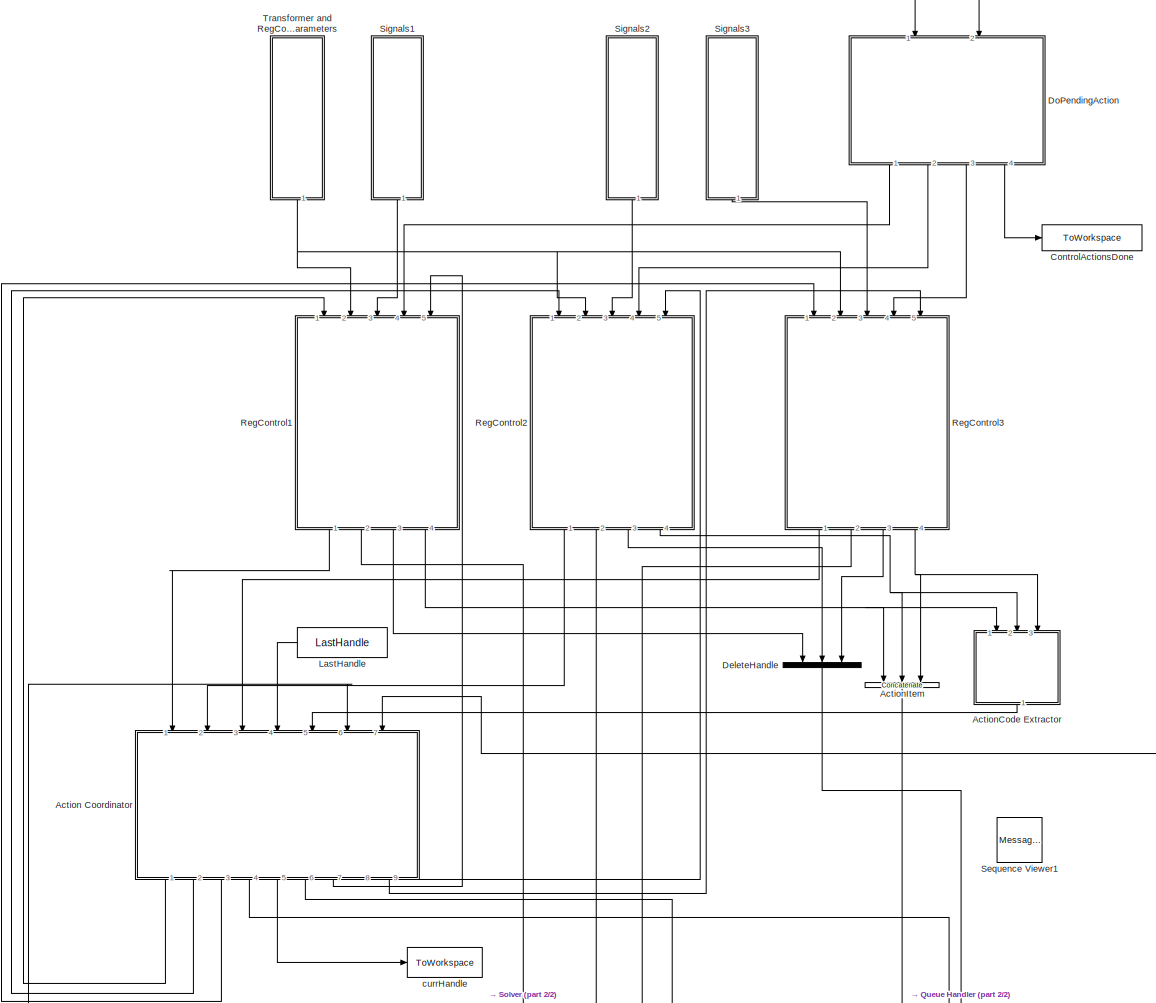
[diagram: root canvas - part 1/2, full width, middle band]
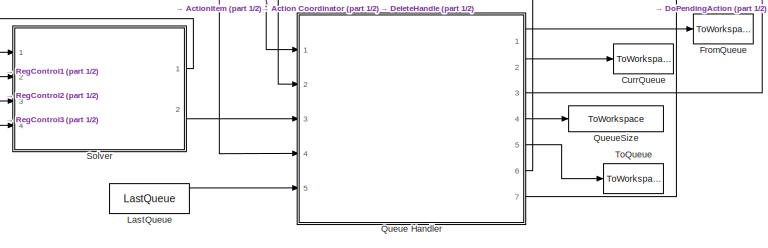
[diagram: root canvas - part 2/2, bottom right region]
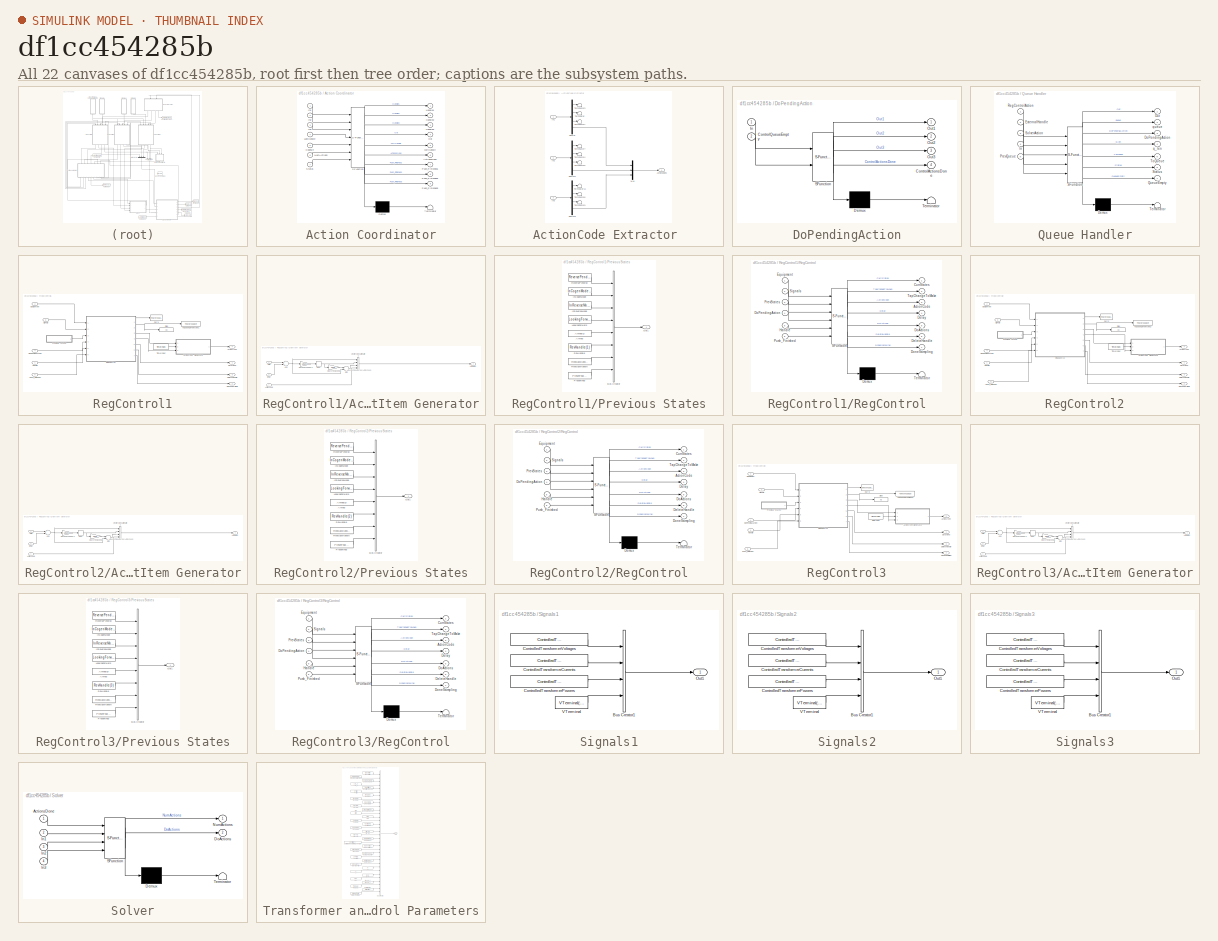
[diagram: thumbnail index - all 22 canvases of the model, root first then tree order]
MODEL slx_df1cc454285b
KIND model
CONFIG AbsTol = auto
CONFIG EnableMultiTasking = off
CONFIG FixedStep = auto
CONFIG MaxStep = auto
CONFIG MinStep = auto
CONFIG RelTol = 1e-3
CONFIG SampleTimeConstraint = Unconstrained
CONFIG Solver = VariableStepAuto
CONFIG SolverName = VariableStepAuto
CONFIG StartTime = 0.0
CONFIG StopTime = 10.0
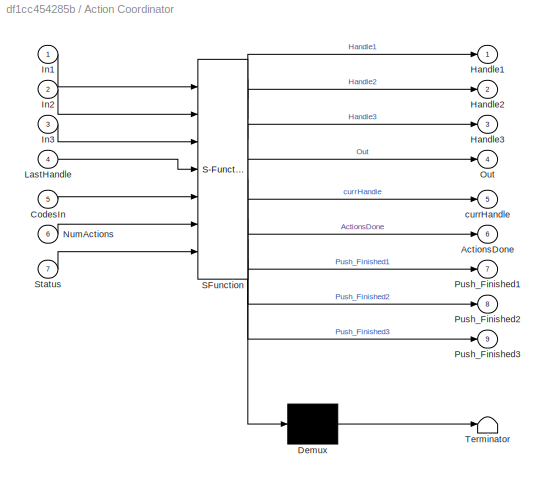
BLOCK [SubSystem] Action Coordinator
  ErrorFcn = Stateflow.Translate.translate
  PermitHierarchicalResolution = ExplicitOnly
  Ports = [7, 9]
  RequestExecContextInheritance = off
  SFBlockType = Chart
  ShowPortLabels = SignalName
  TreatAsAtomicUnit = on
BLOCK [Demux] Action Coordinator/ Demux 
  Outputs = 1
  Ports = [1, 1]
BLOCK [S-Function] Action Coordinator/ SFunction 
  EnableBusSupport = on
  FunctionName = sf_sfun
  InputPortMessageModes = m,m,m,n,n,m,m
  OutputPortMessageModes = n,m,m,m,m,n,m,m,m,m
  Parameters = false,true,uint8(0)
  PortCounts = [7 10]
  Ports = [7, 10]
  SFcnIsStateOwnerBlock = off
  SFunctionDeploymentMode = off
  Tag = Stateflow S-Function regcontrol_model_3ph 7
BLOCK [Terminator] Action Coordinator/ Terminator 
BLOCK [Outport] Action Coordinator/ActionsDone
  IconDisplay = Port number
  Port = 6
BLOCK [Inport] Action Coordinator/CodesIn
  IconDisplay = Port number
  Port = 5
BLOCK [Outport] Action Coordinator/Handle1
  IconDisplay = Port number
BLOCK [Outport] Action Coordinator/Handle2
  IconDisplay = Port number
  Port = 2
BLOCK [Outport] Action Coordinator/Handle3
  IconDisplay = Port number
  Port = 3
BLOCK [Inport] Action Coordinator/In1
  IconDisplay = Port number
BLOCK [Inport] Action Coordinator/In2
  IconDisplay = Port number
  Port = 2
BLOCK [Inport] Action Coordinator/In3
  IconDisplay = Port number
  Port = 3
BLOCK [Inport] Action Coordinator/LastHandle
  IconDisplay = Port number
  Port = 4
BLOCK [Inport] Action Coordinator/NumActions
  IconDisplay = Port number
  Port = 6
BLOCK [Outport] Action Coordinator/Out
  IconDisplay = Port number
  Port = 4
BLOCK [Outport] Action Coordinator/Push_Finished1
  IconDisplay = Port number
  Port = 7
BLOCK [Outport] Action Coordinator/Push_Finished2
  IconDisplay = Port number
  Port = 8
BLOCK [Outport] Action Coordinator/Push_Finished3
  IconDisplay = Port number
  Port = 9
BLOCK [Inport] Action Coordinator/Status
  IconDisplay = Port number
  Port = 7
BLOCK [Outport] Action Coordinator/currHandle
  IconDisplay = Port number
  Port = 5
BLOCK [SubSystem] ActionCode Extractor 
  Ports = [3, 1]
  RequestExecContextInheritance = off
BLOCK [Outport] ActionCode Extractor /ActionCodes
  IconDisplay = Port number
BLOCK [Demux] ActionCode Extractor /Demux
  DisplayOption = bar
  Ports = [1, 4]
BLOCK [Demux] ActionCode Extractor /Demux1
  DisplayOption = bar
  Ports = [1, 4]
BLOCK [Demux] ActionCode Extractor /Demux2
  DisplayOption = bar
  Ports = [1, 4]
BLOCK [Inport] ActionCode Extractor /In1
  IconDisplay = Port number
BLOCK [Inport] ActionCode Extractor /In2
  IconDisplay = Port number
  Port = 2
BLOCK [Inport] ActionCode Extractor /In3
  IconDisplay = Port number
  Port = 3
BLOCK [Mux] ActionCode Extractor /Mux
  DisplayOption = bar
  Inputs = 3
  Ports = [3, 1]
BLOCK [Terminator] ActionCode Extractor /Terminator
BLOCK [Terminator] ActionCode Extractor /Terminator1
BLOCK [Terminator] ActionCode Extractor /Terminator11
BLOCK [Terminator] ActionCode Extractor /Terminator3
BLOCK [Terminator] ActionCode Extractor /Terminator4
BLOCK [Terminator] ActionCode Extractor /Terminator5
BLOCK [Terminator] ActionCode Extractor /Terminator7
BLOCK [Terminator] ActionCode Extractor /Terminator8
BLOCK [Terminator] ActionCode Extractor /Terminator9
BLOCK [Concatenate] ActionItem
  ConcatenateDimension = 2
  Mode = Multidimensional array
  NumInputs = 3
  Ports = [3, 1]
BLOCK [ToWorkspace] ControlActionsDone
  FixptAsFi = on
  MaxDataPoints = 1
  Ports = [1]
  SampleTime = -1
  Save2DSignal = 3-D array (concatenate along third dimension)
  SaveFormat = Timeseries
  VariableName = ControlActionsDone
BLOCK [ToWorkspace] CurrQueue
  FixptAsFi = on
  MaxDataPoints = inf
  Ports = [1]
  SampleTime = 1
  Save2DSignal = 3-D array (concatenate along third dimension)
  SaveFormat = Structure With Time
  VariableName = CurrQueue
BLOCK [Mux] DeleteHandle
  DisplayOption = bar
  Inputs = 3
  Ports = [3, 1]
BLOCK [SubSystem] DoPendingAction
  ErrorFcn = Stateflow.Translate.translate
  PermitHierarchicalResolution = ExplicitOnly
  Ports = [2, 4]
  RequestExecContextInheritance = off
  SFBlockType = Chart
  ShowPortLabels = SignalName
  TreatAsAtomicUnit = on
BLOCK [Demux] DoPendingAction/ Demux 
  Outputs = 1
  Ports = [1, 1]
BLOCK [S-Function] DoPendingAction/ SFunction 
  EnableBusSupport = on
  FunctionName = sf_sfun
  InputPortMessageModes = m,m
  OutputPortMessageModes = n,m,m,m,n
  Parameters = 0,false
  PortCounts = [2 5]
  Ports = [2, 5]
  SFcnIsStateOwnerBlock = off
  SFunctionDeploymentMode = off
  Tag = Stateflow S-Function regcontrol_model_3ph 9
BLOCK [Terminator] DoPendingAction/ Terminator 
BLOCK [Outport] DoPendingAction/ControlActionsDone
  IconDisplay = Port number
  Port = 4
BLOCK [Inport] DoPendingAction/ControlQueueEmpty
  IconDisplay = Port number
  Port = 2
BLOCK [Inport] DoPendingAction/In
  IconDisplay = Port number
BLOCK [Outport] DoPendingAction/Out1
  IconDisplay = Port number
BLOCK [Outport] DoPendingAction/Out2
  IconDisplay = Port number
  Port = 2
BLOCK [Outport] DoPendingAction/Out3
  IconDisplay = Port number
  Port = 3
BLOCK [ToWorkspace] FromQueue
  FixptAsFi = on
  MaxDataPoints = inf
  Ports = [1]
  SampleTime = 1
  Save2DSignal = 3-D array (concatenate along third dimension)
  SaveFormat = Structure With Time
  VariableName = FromQueue
BLOCK [Constant] LastHandle
  Value = LastHandle
BLOCK [Constant] LastQueue
  OutDataTypeStr = double
  Value = LastQueue
  VectorParams1D = off
BLOCK [SubSystem] Queue Handler
  ErrorFcn = Stateflow.Translate.translate
  PermitHierarchicalResolution = ExplicitOnly
  Ports = [5, 7]
  RequestExecContextInheritance = off
  SFBlockType = Chart
  TreatAsAtomicUnit = on
BLOCK [Demux] Queue Handler/ Demux 
  Outputs = 1
  Ports = [1, 1]
BLOCK [S-Function] Queue Handler/ SFunction 
  EnableBusSupport = on
  FunctionName = sf_sfun
  InputPortMessageModes = m,n,m,n,n
  OutputPortMessageModes = n,n,n,m,n,n,m,m
  Parameters = 0,1,2,5,double([0 0]'),false,false;,true
  PortCounts = [5 8]
  Ports = [5, 8]
  SFcnIsStateOwnerBlock = off
  SFunctionDeploymentMode = off
  Tag = Stateflow S-Function regcontrol_model_3ph 5
BLOCK [Terminator] Queue Handler/ Terminator 
BLOCK [Outport] Queue Handler/DoPendingAction
  IconDisplay = Port number
  Port = 3
BLOCK [Inport] Queue Handler/ExternalHandle
  IconDisplay = Port number
  Port = 2
BLOCK [Inport] Queue Handler/In
  IconDisplay = Port number
  Port = 4
BLOCK [Outport] Queue Handler/Out
  IconDisplay = Port number
BLOCK [Inport] Queue Handler/PrevQueue
  IconDisplay = Port number
  Port = 5
BLOCK [Outport] Queue Handler/QueueEmpty
  IconDisplay = Port number
  Port = 7
BLOCK [Inport] Queue Handler/RegControlAction
  IconDisplay = Port number
BLOCK [Inport] Queue Handler/SolverAction
  IconDisplay = Port number
  Port = 3
BLOCK [Outport] Queue Handler/Status
  IconDisplay = Port number
  Port = 6
BLOCK [Outport] Queue Handler/ToQueue
  IconDisplay = Port number
  Port = 5
BLOCK [Outport] Queue Handler/q_len
  IconDisplay = Port number
  Port = 4
BLOCK [Outport] Queue Handler/queue
  IconDisplay = Port number
  Port = 2
BLOCK [ToWorkspace] QueueSize
  FixptAsFi = on
  MaxDataPoints = 1
  Ports = [1]
  SampleTime = -1
  Save2DSignal = 3-D array (concatenate along third dimension)
  SaveFormat = Timeseries
  VariableName = QueueSize
BLOCK [SubSystem] RegControl1
  Ports = [5, 4]
  RequestExecContextInheritance = off
BLOCK [Outport] RegControl1/ActionItem
  IconDisplay = Port number
  Port = 4
BLOCK [SubSystem] RegControl1/ActionItem Generator
  Ports = [3, 1]
  RequestExecContextInheritance = off
BLOCK [Inport] RegControl1/ActionItem Generator/ActionCode
  IconDisplay = Port number
BLOCK [Outport] RegControl1/ActionItem Generator/ActionItem
  IconDisplay = Port number
BLOCK [Sum] RegControl1/ActionItem Generator/Add
  InputSameDT = off
  OutDataTypeStr = Inherit: Inherit via internal rule
  Ports = [2, 1]
  SaturateOnIntegerOverflow = off
BLOCK [Inport] RegControl1/ActionItem Generator/Delay
  IconDisplay = Port number
  Port = 3
BLOCK [Rounding] RegControl1/ActionItem Generator/Hour
BLOCK [Gain] RegControl1/ActionItem Generator/HoursToSeconds
  Gain = 3600
  OutDataTypeStr = Inherit: Inherit via internal rule
  ParamDataTypeStr = Inherit: Inherit via internal rule
  SaturateOnIntegerOverflow = off
BLOCK [Sum] RegControl1/ActionItem Generator/Sec
  InputSameDT = off
  Inputs = -+
  OutDataTypeStr = Inherit: Inherit via internal rule
  Ports = [2, 1]
  SaturateOnIntegerOverflow = off
BLOCK [Gain] RegControl1/ActionItem Generator/SecondsToHours
  Gain = 1/3600
  OutDataTypeStr = Inherit: Inherit via internal rule
  ParamDataTypeStr = Inherit: Inherit via internal rule
  SaturateOnIntegerOverflow = off
BLOCK [Inport] RegControl1/ActionItem Generator/Time
  IconDisplay = Port number
  Port = 2
BLOCK [Concatenate] RegControl1/ActionItem Generator/Vector Concatenate1
  NumInputs = 4
  Ports = [4, 1]
BLOCK [ToWorkspace] RegControl1/Curr1
  FixptAsFi = on
  MaxDataPoints = 1
  Ports = [1]
  SampleTime = -1
  Save2DSignal = 3-D array (concatenate along third dimension)
  SaveFormat = Timeseries
  VariableName = Curr1
BLOCK [Outport] RegControl1/DeleteHandle
  IconDisplay = Port number
  Port = 3
BLOCK [Display] RegControl1/Disp
  Decimation = 1
  Ports = [1]
BLOCK [Outport] RegControl1/DoActions
  IconDisplay = Port number
BLOCK [Inport] RegControl1/DoPendingAction
  IconDisplay = Port number
  Port = 4
BLOCK [Outport] RegControl1/DoneSampling
  IconDisplay = Port number
  Port = 2
BLOCK [Inport] RegControl1/Equipment
  IconDisplay = Port number
  Port = 2
BLOCK [Inport] RegControl1/Handle
  IconDisplay = Port number
BLOCK [SubSystem] RegControl1/Previous States
  Ports = [0, 1]
  RequestExecContextInheritance = off
BLOCK [Constant] RegControl1/Previous States/Armed
  Value = Armed(1)
BLOCK [BusCreator] RegControl1/Previous States/Bus Creator
  DisplayOption = bar
  InheritFromInputs = off
  Inputs = 8
  OutDataTypeStr = Bus: StatesBus
  Ports = [8, 1]
BLOCK [Constant] RegControl1/Previous States/InCogenMode
  Value = InCogenMode(1)
BLOCK [Constant] RegControl1/Previous States/InReverseMode
  Value = InReverseMode(1)
BLOCK [Constant] RegControl1/Previous States/LookingForward
  Value = LookingForward(1)
BLOCK [Outport] RegControl1/Previous States/Out1
  IconDisplay = Port number
BLOCK [Constant] RegControl1/Previous States/PresentTap
  Value = PresentTap(1)
BLOCK [Constant] RegControl1/Previous States/RevBackHandle
  Value = RevBackHandle(1)
BLOCK [Constant] RegControl1/Previous States/RevHandle
  Value = RevHandle(1)
BLOCK [Constant] RegControl1/Previous States/ReversePending
  Value = ReversePending(1)
BLOCK [Inport] RegControl1/Push_Finished
  IconDisplay = Port number
  Port = 5
BLOCK [SubSystem] RegControl1/RegControl
  ErrorFcn = Stateflow.Translate.translate
  PermitHierarchicalResolution = ExplicitOnly
  Ports = [6, 7]
  RequestExecContextInheritance = off
  SFBlockType = Chart
  TreatAsAtomicUnit = on
BLOCK [Demux] RegControl1/RegControl/ Demux 
  Outputs = 1
  Ports = [1, 1]
BLOCK [S-Function] RegControl1/RegControl/ SFunction 
  EnableBusSupport = on
  FunctionName = sf_sfun
  InputPortMessageModes = n,n,n,m,m,m
  OutputPortMessageModes = n,n,n,n,n,m,n,m
  Parameters = 0,1.0e-12,120,3,60,BaseVoltage,complex(0),false,uint8(1),uint8(16)
  PortCounts = [6 8]
  Ports = [6, 8]
  SFcnIsStateOwnerBlock = off
  SFunctionDeploymentMode = off
  Tag = Stateflow S-Function regcontrol_model_3ph 2
BLOCK [Terminator] RegControl1/RegControl/ Terminator 
BLOCK [Outport] RegControl1/RegControl/ActionCode
  IconDisplay = Port number
  Port = 3
BLOCK [Outport] RegControl1/RegControl/CurrStates
  IconDisplay = Port number
BLOCK [Outport] RegControl1/RegControl/Delay
  IconDisplay = Port number
  Port = 4
BLOCK [Outport] RegControl1/RegControl/DeleteHandle
  IconDisplay = Port number
  Port = 6
BLOCK [Outport] RegControl1/RegControl/DoActions
  IconDisplay = Port number
  Port = 5
BLOCK [Inport] RegControl1/RegControl/DoPendingAction
  IconDisplay = Port number
  Port = 4
BLOCK [Outport] RegControl1/RegControl/DoneSampling
  IconDisplay = Port number
  Port = 7
BLOCK [Inport] RegControl1/RegControl/Equipment
  IconDisplay = Port number
BLOCK [Inport] RegControl1/RegControl/Handle
  IconDisplay = Port number
  Port = 5
BLOCK [Inport] RegControl1/RegControl/PrevStates
  IconDisplay = Port number
  Port = 3
BLOCK [Inport] RegControl1/RegControl/Push_Finished
  IconDisplay = Port number
  Port = 6
BLOCK [Inport] RegControl1/RegControl/Signals
  IconDisplay = Port number
  Port = 2
BLOCK [Outport] RegControl1/RegControl/TapChangeToMake
  IconDisplay = Port number
  Port = 2
BLOCK [Inport] RegControl1/Signals
  IconDisplay = Port number
  Port = 3
BLOCK [ToWorkspace] RegControl1/TapChangeToMake1
  FixptAsFi = on
  MaxDataPoints = 1
  Ports = [1]
  SampleTime = -1
  Save2DSignal = 3-D array (concatenate along third dimension)
  SaveFormat = Timeseries
  VariableName = TapChangeToMake1
BLOCK [Constant] RegControl1/TimeInSec
  OutDataTypeStr = double
  Value = TimeInSec
BLOCK [SubSystem] RegControl2
  Ports = [5, 4]
  RequestExecContextInheritance = off
BLOCK [Outport] RegControl2/ActionItem
  IconDisplay = Port number
  Port = 4
BLOCK [SubSystem] RegControl2/ActionItem Generator
  Ports = [3, 1]
  RequestExecContextInheritance = off
BLOCK [Inport] RegControl2/ActionItem Generator/ActionCode
  IconDisplay = Port number
BLOCK [Outport] RegControl2/ActionItem Generator/ActionItem
  IconDisplay = Port number
BLOCK [Sum] RegControl2/ActionItem Generator/Add
  InputSameDT = off
  OutDataTypeStr = Inherit: Inherit via internal rule
  Ports = [2, 1]
  SaturateOnIntegerOverflow = off
BLOCK [Inport] RegControl2/ActionItem Generator/Delay
  IconDisplay = Port number
  Port = 3
BLOCK [Rounding] RegControl2/ActionItem Generator/Hour
BLOCK [Gain] RegControl2/ActionItem Generator/HoursToSeconds
  Gain = 3600
  OutDataTypeStr = Inherit: Inherit via internal rule
  ParamDataTypeStr = Inherit: Inherit via internal rule
  SaturateOnIntegerOverflow = off
BLOCK [Sum] RegControl2/ActionItem Generator/Sec
  InputSameDT = off
  Inputs = -+
  OutDataTypeStr = Inherit: Inherit via internal rule
  Ports = [2, 1]
  SaturateOnIntegerOverflow = off
BLOCK [Gain] RegControl2/ActionItem Generator/SecondsToHours
  Gain = 1/3600
  OutDataTypeStr = Inherit: Inherit via internal rule
  ParamDataTypeStr = Inherit: Inherit via internal rule
  SaturateOnIntegerOverflow = off
BLOCK [Inport] RegControl2/ActionItem Generator/Time
  IconDisplay = Port number
  Port = 2
BLOCK [Concatenate] RegControl2/ActionItem Generator/Vector Concatenate1
  NumInputs = 4
  Ports = [4, 1]
BLOCK [ToWorkspace] RegControl2/Curr2
  FixptAsFi = on
  MaxDataPoints = 1
  Ports = [1]
  SampleTime = -1
  Save2DSignal = 3-D array (concatenate along third dimension)
  SaveFormat = Timeseries
  VariableName = Curr2
BLOCK [Outport] RegControl2/DeleteHandle
  IconDisplay = Port number
  Port = 3
BLOCK [Display] RegControl2/Disp
  Decimation = 1
  Ports = [1]
BLOCK [Outport] RegControl2/DoActions
  IconDisplay = Port number
BLOCK [Inport] RegControl2/DoPendingAction
  IconDisplay = Port number
  Port = 4
BLOCK [Outport] RegControl2/DoneSampling
  IconDisplay = Port number
  Port = 2
BLOCK [Inport] RegControl2/Equipment
  IconDisplay = Port number
  Port = 2
BLOCK [Inport] RegControl2/Handle
  IconDisplay = Port number
BLOCK [SubSystem] RegControl2/Previous States
  Ports = [0, 1]
  RequestExecContextInheritance = off
BLOCK [Constant] RegControl2/Previous States/Armed
  Value = Armed(2)
BLOCK [BusCreator] RegControl2/Previous States/Bus Creator
  DisplayOption = bar
  InheritFromInputs = off
  Inputs = 8
  OutDataTypeStr = Bus: StatesBus
  Ports = [8, 1]
BLOCK [Constant] RegControl2/Previous States/InCogenMode
  Value = InCogenMode(2)
BLOCK [Constant] RegControl2/Previous States/InReverseMode
  Value = InReverseMode(2)
BLOCK [Constant] RegControl2/Previous States/LookingForward
  Value = LookingForward(2)
BLOCK [Outport] RegControl2/Previous States/Out1
  IconDisplay = Port number
BLOCK [Constant] RegControl2/Previous States/PresentTap
  Value = PresentTap(2)
BLOCK [Constant] RegControl2/Previous States/RevBackHandle
  Value = RevBackHandle(2)
BLOCK [Constant] RegControl2/Previous States/RevHandle
  Value = RevHandle(2)
BLOCK [Constant] RegControl2/Previous States/ReversePending
  Value = ReversePending(2)
BLOCK [Inport] RegControl2/Push_Finished
  IconDisplay = Port number
  Port = 5
BLOCK [SubSystem] RegControl2/RegControl
  ErrorFcn = Stateflow.Translate.translate
  PermitHierarchicalResolution = ExplicitOnly
  Ports = [6, 7]
  RequestExecContextInheritance = off
  SFBlockType = Chart
  TreatAsAtomicUnit = on
BLOCK [Demux] RegControl2/RegControl/ Demux 
  Outputs = 1
  Ports = [1, 1]
BLOCK [S-Function] RegControl2/RegControl/ SFunction 
  EnableBusSupport = on
  FunctionName = sf_sfun
  InputPortMessageModes = n,n,n,m,m,m
  OutputPortMessageModes = n,n,n,n,n,m,n,m
  Parameters = 0,1.0e-12,120,3,60,BaseVoltage,complex(0),false,uint8(1),uint8(16)
  PortCounts = [6 8]
  Ports = [6, 8]
  SFcnIsStateOwnerBlock = off
  SFunctionDeploymentMode = off
  Tag = Stateflow S-Function regcontrol_model_3ph 1
BLOCK [Terminator] RegControl2/RegControl/ Terminator 
BLOCK [Outport] RegControl2/RegControl/ActionCode
  IconDisplay = Port number
  Port = 3
BLOCK [Outport] RegControl2/RegControl/CurrStates
  IconDisplay = Port number
BLOCK [Outport] RegControl2/RegControl/Delay
  IconDisplay = Port number
  Port = 4
BLOCK [Outport] RegControl2/RegControl/DeleteHandle
  IconDisplay = Port number
  Port = 6
BLOCK [Outport] RegControl2/RegControl/DoActions
  IconDisplay = Port number
  Port = 5
BLOCK [Inport] RegControl2/RegControl/DoPendingAction
  IconDisplay = Port number
  Port = 4
BLOCK [Outport] RegControl2/RegControl/DoneSampling
  IconDisplay = Port number
  Port = 7
BLOCK [Inport] RegControl2/RegControl/Equipment
  IconDisplay = Port number
BLOCK [Inport] RegControl2/RegControl/Handle
  IconDisplay = Port number
  Port = 5
BLOCK [Inport] RegControl2/RegControl/PrevStates
  IconDisplay = Port number
  Port = 3
BLOCK [Inport] RegControl2/RegControl/Push_Finished
  IconDisplay = Port number
  Port = 6
BLOCK [Inport] RegControl2/RegControl/Signals
  IconDisplay = Port number
  Port = 2
BLOCK [Outport] RegControl2/RegControl/TapChangeToMake
  IconDisplay = Port number
  Port = 2
BLOCK [Inport] RegControl2/Signals
  IconDisplay = Port number
  Port = 3
BLOCK [ToWorkspace] RegControl2/TapChangeToMake2
  FixptAsFi = on
  MaxDataPoints = 1
  Ports = [1]
  SampleTime = -1
  Save2DSignal = 3-D array (concatenate along third dimension)
  SaveFormat = Timeseries
  VariableName = TapChangeToMake2
BLOCK [Constant] RegControl2/TimeInSec
  OutDataTypeStr = double
  Value = TimeInSec
BLOCK [SubSystem] RegControl3
  Ports = [5, 4]
  RequestExecContextInheritance = off
BLOCK [Outport] RegControl3/ActionItem
  IconDisplay = Port number
  Port = 4
BLOCK [SubSystem] RegControl3/ActionItem Generator
  Ports = [3, 1]
  RequestExecContextInheritance = off
BLOCK [Inport] RegControl3/ActionItem Generator/ActionCode
  IconDisplay = Port number
BLOCK [Outport] RegControl3/ActionItem Generator/ActionItem
  IconDisplay = Port number
BLOCK [Sum] RegControl3/ActionItem Generator/Add
  InputSameDT = off
  OutDataTypeStr = Inherit: Inherit via internal rule
  Ports = [2, 1]
  SaturateOnIntegerOverflow = off
BLOCK [Inport] RegControl3/ActionItem Generator/Delay
  IconDisplay = Port number
  Port = 3
BLOCK [Rounding] RegControl3/ActionItem Generator/Hour
BLOCK [Gain] RegControl3/ActionItem Generator/HoursToSeconds
  Gain = 3600
  OutDataTypeStr = Inherit: Inherit via internal rule
  ParamDataTypeStr = Inherit: Inherit via internal rule
  SaturateOnIntegerOverflow = off
BLOCK [Sum] RegControl3/ActionItem Generator/Sec
  InputSameDT = off
  Inputs = -+
  OutDataTypeStr = Inherit: Inherit via internal rule
  Ports = [2, 1]
  SaturateOnIntegerOverflow = off
BLOCK [Gain] RegControl3/ActionItem Generator/SecondsToHours
  Gain = 1/3600
  OutDataTypeStr = Inherit: Inherit via internal rule
  ParamDataTypeStr = Inherit: Inherit via internal rule
  SaturateOnIntegerOverflow = off
BLOCK [Inport] RegControl3/ActionItem Generator/Time
  IconDisplay = Port number
  Port = 2
BLOCK [Concatenate] RegControl3/ActionItem Generator/Vector Concatenate1
  NumInputs = 4
  Ports = [4, 1]
BLOCK [ToWorkspace] RegControl3/Curr3
  FixptAsFi = on
  MaxDataPoints = 1
  Ports = [1]
  SampleTime = -1
  Save2DSignal = 3-D array (concatenate along third dimension)
  SaveFormat = Timeseries
  VariableName = Curr3
BLOCK [Outport] RegControl3/DeleteHandle
  IconDisplay = Port number
  Port = 3
BLOCK [Display] RegControl3/Disp
  Decimation = 1
  Ports = [1]
BLOCK [Outport] RegControl3/DoActions
  IconDisplay = Port number
BLOCK [Inport] RegControl3/DoPendingAction
  IconDisplay = Port number
  Port = 4
BLOCK [Outport] RegControl3/DoneSampling
  IconDisplay = Port number
  Port = 2
BLOCK [Inport] RegControl3/Equipment
  IconDisplay = Port number
  Port = 2
BLOCK [Inport] RegControl3/Handle
  IconDisplay = Port number
BLOCK [SubSystem] RegControl3/Previous States
  Ports = [0, 1]
  RequestExecContextInheritance = off
BLOCK [Constant] RegControl3/Previous States/Armed
  Value = Armed(3)
BLOCK [BusCreator] RegControl3/Previous States/Bus Creator
  DisplayOption = bar
  InheritFromInputs = off
  Inputs = 8
  OutDataTypeStr = Bus: StatesBus
  Ports = [8, 1]
BLOCK [Constant] RegControl3/Previous States/InCogenMode
  Value = InCogenMode(3)
BLOCK [Constant] RegControl3/Previous States/InReverseMode
  Value = InReverseMode(3)
BLOCK [Constant] RegControl3/Previous States/LookingForward
  Value = LookingForward(3)
BLOCK [Outport] RegControl3/Previous States/Out1
  IconDisplay = Port number
BLOCK [Constant] RegControl3/Previous States/PresentTap
  Value = PresentTap(3)
BLOCK [Constant] RegControl3/Previous States/RevBackHandle
  Value = RevBackHandle(3)
BLOCK [Constant] RegControl3/Previous States/RevHandle
  Value = RevHandle(3)
BLOCK [Constant] RegControl3/Previous States/ReversePending
  Value = ReversePending(3)
BLOCK [Inport] RegControl3/Push_Finished
  IconDisplay = Port number
  Port = 5
BLOCK [SubSystem] RegControl3/RegControl
  ErrorFcn = Stateflow.Translate.translate
  PermitHierarchicalResolution = ExplicitOnly
  Ports = [6, 7]
  RequestExecContextInheritance = off
  SFBlockType = Chart
  TreatAsAtomicUnit = on
BLOCK [Demux] RegControl3/RegControl/ Demux 
  Outputs = 1
  Ports = [1, 1]
BLOCK [S-Function] RegControl3/RegControl/ SFunction 
  EnableBusSupport = on
  FunctionName = sf_sfun
  InputPortMessageModes = n,n,n,m,m,m
  OutputPortMessageModes = n,n,n,n,n,m,n,m
  Parameters = 0,1.0e-12,120,3,60,BaseVoltage,complex(0),false,uint8(1),uint8(16)
  PortCounts = [6 8]
  Ports = [6, 8]
  SFcnIsStateOwnerBlock = off
  SFunctionDeploymentMode = off
  Tag = Stateflow S-Function regcontrol_model_3ph 3
BLOCK [Terminator] RegControl3/RegControl/ Terminator 
BLOCK [Outport] RegControl3/RegControl/ActionCode
  IconDisplay = Port number
  Port = 3
BLOCK [Outport] RegControl3/RegControl/CurrStates
  IconDisplay = Port number
BLOCK [Outport] RegControl3/RegControl/Delay
  IconDisplay = Port number
  Port = 4
BLOCK [Outport] RegControl3/RegControl/DeleteHandle
  IconDisplay = Port number
  Port = 6
BLOCK [Outport] RegControl3/RegControl/DoActions
  IconDisplay = Port number
  Port = 5
BLOCK [Inport] RegControl3/RegControl/DoPendingAction
  IconDisplay = Port number
  Port = 4
BLOCK [Outport] RegControl3/RegControl/DoneSampling
  IconDisplay = Port number
  Port = 7
BLOCK [Inport] RegControl3/RegControl/Equipment
  IconDisplay = Port number
BLOCK [Inport] RegControl3/RegControl/Handle
  IconDisplay = Port number
  Port = 5
BLOCK [Inport] RegControl3/RegControl/PrevStates
  IconDisplay = Port number
  Port = 3
BLOCK [Inport] RegControl3/RegControl/Push_Finished
  IconDisplay = Port number
  Port = 6
BLOCK [Inport] RegControl3/RegControl/Signals
  IconDisplay = Port number
  Port = 2
BLOCK [Outport] RegControl3/RegControl/TapChangeToMake
  IconDisplay = Port number
  Port = 2
BLOCK [Inport] RegControl3/Signals
  IconDisplay = Port number
  Port = 3
BLOCK [ToWorkspace] RegControl3/TapChangeToMake3
  FixptAsFi = on
  MaxDataPoints = 1
  Ports = [1]
  SampleTime = -1
  Save2DSignal = 3-D array (concatenate along third dimension)
  SaveFormat = Timeseries
  VariableName = TapChangeToMake3
BLOCK [Constant] RegControl3/TimeInSec
  OutDataTypeStr = double
  Value = TimeInSec
BLOCK [MessageViewer] Sequence Viewer1
BLOCK [SubSystem] Signals1
  Ports = [0, 1]
  RequestExecContextInheritance = off
BLOCK [BusCreator] Signals1/Bus Creator1
  DisplayOption = bar
  InheritFromInputs = off
  Inputs = 4
  OutDataTypeStr = Bus: SignalBus
  Ports = [4, 1]
BLOCK [Constant] Signals1/ControlledTransformerCurrents
  Value = ControlledTransformerCurrents(:,1)
BLOCK [Constant] Signals1/ControlledTransformerPowers
  Value = ControlledTransformerPowers(:,1)
BLOCK [Constant] Signals1/ControlledTransformerVoltages
  Value = ControlledTransformerVoltages(:,1)
BLOCK [Outport] Signals1/Out1
  IconDisplay = Port number
BLOCK [Constant] Signals1/VTerminal
  Value = VTerminal(:,1)
BLOCK [SubSystem] Signals2
  Ports = [0, 1]
  RequestExecContextInheritance = off
BLOCK [BusCreator] Signals2/Bus Creator1
  DisplayOption = bar
  InheritFromInputs = off
  Inputs = 4
  OutDataTypeStr = Bus: SignalBus
  Ports = [4, 1]
BLOCK [Constant] Signals2/ControlledTransformerCurrents
  Value = ControlledTransformerCurrents(:,2)
BLOCK [Constant] Signals2/ControlledTransformerPowers
  Value = ControlledTransformerPowers(:,2)
BLOCK [Constant] Signals2/ControlledTransformerVoltages
  Value = ControlledTransformerVoltages(:,2)
BLOCK [Outport] Signals2/Out1
  IconDisplay = Port number
BLOCK [Constant] Signals2/VTerminal
  Value = VTerminal(:,2)
BLOCK [SubSystem] Signals3
  Ports = [0, 1]
  RequestExecContextInheritance = off
BLOCK [BusCreator] Signals3/Bus Creator1
  DisplayOption = bar
  InheritFromInputs = off
  Inputs = 4
  OutDataTypeStr = Bus: SignalBus
  Ports = [4, 1]
BLOCK [Constant] Signals3/ControlledTransformerCurrents
  Value = ControlledTransformerCurrents(:,3)
BLOCK [Constant] Signals3/ControlledTransformerPowers
  Value = ControlledTransformerPowers(:,3)
BLOCK [Constant] Signals3/ControlledTransformerVoltages
  Value = ControlledTransformerVoltages(:,3)
BLOCK [Outport] Signals3/Out1
  IconDisplay = Port number
BLOCK [Constant] Signals3/VTerminal
  Value = VTerminal(:,3)
BLOCK [SubSystem] Solver
  ErrorFcn = Stateflow.Translate.translate
  PermitHierarchicalResolution = ExplicitOnly
  Ports = [4, 2]
  RequestExecContextInheritance = off
  SFBlockType = Chart
  ShowPortLabels = SignalName
  TreatAsAtomicUnit = on
BLOCK [Demux] Solver/ Demux 
  Outputs = 1
  Ports = [1, 1]
BLOCK [S-Function] Solver/ SFunction 
  EnableBusSupport = on
  FunctionName = sf_sfun
  InputPortMessageModes = m,m,m,m
  OutputPortMessageModes = n,m,m
  PortCounts = [4 3]
  Ports = [4, 3]
  SFcnIsStateOwnerBlock = off
  SFunctionDeploymentMode = off
  Tag = Stateflow S-Function regcontrol_model_3ph 8
BLOCK [Terminator] Solver/ Terminator 
BLOCK [Inport] Solver/ActionsDone
  IconDisplay = Port number
BLOCK [Outport] Solver/DoActions
  IconDisplay = Port number
  Port = 2
BLOCK [Inport] Solver/In1
  IconDisplay = Port number
  Port = 2
BLOCK [Inport] Solver/In2
  IconDisplay = Port number
  Port = 3
BLOCK [Inport] Solver/In3
  IconDisplay = Port number
  Port = 4
BLOCK [Outport] Solver/NumActions
  IconDisplay = Port number
BLOCK [ToWorkspace] ToQueue
  FixptAsFi = on
  MaxDataPoints = 1
  Ports = [1]
  SampleTime = -1
  Save2DSignal = 3-D array (concatenate along third dimension)
  SaveFormat = Structure With Time
  VariableName = ToQueue
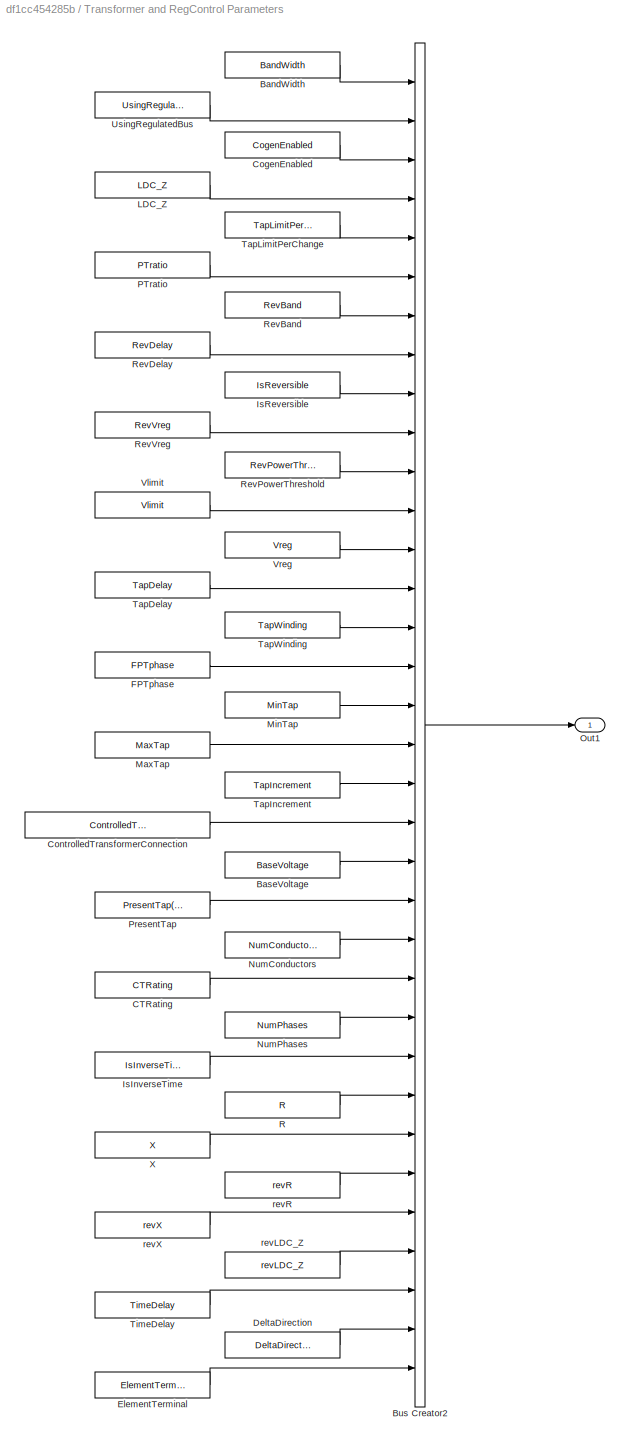
BLOCK [SubSystem] Transformer and RegControl Parameters
  Ports = [0, 1]
  RequestExecContextInheritance = off
BLOCK [Constant] Transformer and RegControl Parameters/BandWidth
  Value = BandWidth
BLOCK [Constant] Transformer and RegControl Parameters/BaseVoltage
  Value = BaseVoltage
BLOCK [BusCreator] Transformer and RegControl Parameters/Bus Creator2
  DisplayOption = bar
  InheritFromInputs = off
  Inputs = 34
  OutDataTypeStr = Bus: EquipmentBus
  Ports = [34, 1]
BLOCK [Constant] Transformer and RegControl Parameters/CTRating
  Value = CTRating
BLOCK [Constant] Transformer and RegControl Parameters/CogenEnabled
  Value = CogenEnabled
BLOCK [Constant] Transformer and RegControl Parameters/ControlledTransformerConnection
  Value = ControlledTransformerConnection
BLOCK [Constant] Transformer and RegControl Parameters/DeltaDirection
  Value = DeltaDirection
BLOCK [Constant] Transformer and RegControl Parameters/ElementTerminal
  Value = ElementTerminal
BLOCK [Constant] Transformer and RegControl Parameters/FPTphase
  Value = FPTphase
BLOCK [Constant] Transformer and RegControl Parameters/IsInverseTime
  Value = IsInverseTime
BLOCK [Constant] Transformer and RegControl Parameters/IsReversible
  Value = IsReversible
BLOCK [Constant] Transformer and RegControl Parameters/LDC_Z
  Value = LDC_Z
BLOCK [Constant] Transformer and RegControl Parameters/MaxTap
  Value = MaxTap
BLOCK [Constant] Transformer and RegControl Parameters/MinTap
  Value = MinTap
BLOCK [Constant] Transformer and RegControl Parameters/NumConductors
  Value = NumConductors
BLOCK [Constant] Transformer and RegControl Parameters/NumPhases
  Value = NumPhases
BLOCK [Outport] Transformer and RegControl Parameters/Out1
  IconDisplay = Port number
BLOCK [Constant] Transformer and RegControl Parameters/PTratio
  Value = PTratio
BLOCK [Constant] Transformer and RegControl Parameters/PresentTap
  Value = PresentTap(1)
BLOCK [Constant] Transformer and RegControl Parameters/R
  Value = R
BLOCK [Constant] Transformer and RegControl Parameters/RevBand
  Value = RevBand
BLOCK [Constant] Transformer and RegControl Parameters/RevDelay
  Value = RevDelay
BLOCK [Constant] Transformer and RegControl Parameters/RevPowerThreshold
  Value = RevPowerThreshold
BLOCK [Constant] Transformer and RegControl Parameters/RevVreg
  Value = RevVreg
BLOCK [Constant] Transformer and RegControl Parameters/TapDelay
  Value = TapDelay
BLOCK [Constant] Transformer and RegControl Parameters/TapIncrement
  Value = TapIncrement
BLOCK [Constant] Transformer and RegControl Parameters/TapLimitPerChange
  Value = TapLimitPerChange
BLOCK [Constant] Transformer and RegControl Parameters/TapWinding
  Value = TapWinding
BLOCK [Constant] Transformer and RegControl Parameters/TimeDelay
  Value = TimeDelay
BLOCK [Constant] Transformer and RegControl Parameters/UsingRegulatedBus
  Value = UsingRegulatedBus
BLOCK [Constant] Transformer and RegControl Parameters/Vlimit
  Value = Vlimit
BLOCK [Constant] Transformer and RegControl Parameters/Vreg
  Value = Vreg
BLOCK [Constant] Transformer and RegControl Parameters/X
  Value = X
BLOCK [Constant] Transformer and RegControl Parameters/revLDC_Z
  Value = revLDC_Z
BLOCK [Constant] Transformer and RegControl Parameters/revR
  Value = revR
BLOCK [Constant] Transformer and RegControl Parameters/revX
  Value = revX
BLOCK [ToWorkspace] currHandle
  FixptAsFi = on
  MaxDataPoints = 1
  Ports = [1]
  SampleTime = -1
  Save2DSignal = 3-D array (concatenate along third dimension)
  SaveFormat = Timeseries
  VariableName = currHandle
ANNOTATION RegControl1/ActionItem Generator: [Handle Time Hour Sec ActionCode]'
ANNOTATION RegControl2/ActionItem Generator: [Handle Time Hour Sec ActionCode]'
ANNOTATION RegControl3/ActionItem Generator: [Handle Time Hour Sec ActionCode]'
LINE Action Coordinator:1 -> RegControl1:1
LINE Action Coordinator:2 -> RegControl2:1
LINE Action Coordinator:3 -> RegControl3:1
LINE Action Coordinator:4 -> Queue Handler:1
LINE Action Coordinator:5 -> currHandle:1
LINE Action Coordinator:6 -> Solver:1
LINE Action Coordinator:7 -> RegControl1:5
LINE Action Coordinator:8 -> RegControl2:5
LINE Action Coordinator:9 -> RegControl3:5
LINE ActionCode Extractor /Demux1:1 -> ActionCode Extractor /Terminator7:1
LINE ActionCode Extractor /Demux1:2 -> ActionCode Extractor /Terminator4:1
LINE ActionCode Extractor /Demux1:3 -> ActionCode Extractor /Terminator5:1
LINE ActionCode Extractor /Demux1:4 -> ActionCode Extractor /Mux:2
LINE ActionCode Extractor /Demux2:1 -> ActionCode Extractor /Terminator11:1
LINE ActionCode Extractor /Demux2:2 -> ActionCode Extractor /Terminator8:1
LINE ActionCode Extractor /Demux2:3 -> ActionCode Extractor /Terminator9:1
LINE ActionCode Extractor /Demux2:4 -> ActionCode Extractor /Mux:3
LINE ActionCode Extractor /Demux:1 -> ActionCode Extractor /Terminator3:1
LINE ActionCode Extractor /Demux:2 -> ActionCode Extractor /Terminator:1
LINE ActionCode Extractor /Demux:3 -> ActionCode Extractor /Terminator1:1
LINE ActionCode Extractor /Demux:4 -> ActionCode Extractor /Mux:1
LINE ActionCode Extractor /In1:1 -> ActionCode Extractor /Demux:1
LINE ActionCode Extractor /In2:1 -> ActionCode Extractor /Demux1:1
LINE ActionCode Extractor /In3:1 -> ActionCode Extractor /Demux2:1
LINE ActionCode Extractor /Mux:1 -> ActionCode Extractor /ActionCodes:1
LINE ActionCode Extractor :1 -> Action Coordinator:5
LINE ActionItem:1 -> Queue Handler:4
LINE DeleteHandle:1 -> Queue Handler:2
LINE DoPendingAction:1 -> RegControl1:4
LINE DoPendingAction:2 -> RegControl2:4
LINE DoPendingAction:3 -> RegControl3:4
LINE DoPendingAction:4 -> ControlActionsDone:1
LINE LastHandle:1 -> Action Coordinator:4
LINE LastQueue:1 -> Queue Handler:5
LINE Queue Handler:1 -> FromQueue:1
LINE Queue Handler:2 -> CurrQueue:1
LINE Queue Handler:3 -> DoPendingAction:1
LINE Queue Handler:4 -> QueueSize:1
LINE Queue Handler:5 -> ToQueue:1
LINE Queue Handler:6 -> Action Coordinator:7
LINE Queue Handler:7 -> DoPendingAction:2
LINE RegControl1/ActionItem Generator/ActionCode:1 -> RegControl1/ActionItem Generator/Vector Concatenate1:4
NET RegControl1/ActionItem Generator/Add:1 -> RegControl1/ActionItem Generator/Sec:2, RegControl1/ActionItem Generator/SecondsToHours:1, RegControl1/ActionItem Generator/Vector Concatenate1:1
LINE RegControl1/ActionItem Generator/Delay:1 -> RegControl1/ActionItem Generator/Add:2
NET RegControl1/ActionItem Generator/Hour:1 -> RegControl1/ActionItem Generator/HoursToSeconds:1, RegControl1/ActionItem Generator/Vector Concatenate1:2
LINE RegControl1/ActionItem Generator/HoursToSeconds:1 -> RegControl1/ActionItem Generator/Sec:1
LINE RegControl1/ActionItem Generator/Sec:1 -> RegControl1/ActionItem Generator/Vector Concatenate1:3
LINE RegControl1/ActionItem Generator/SecondsToHours:1 -> RegControl1/ActionItem Generator/Hour:1
LINE RegControl1/ActionItem Generator/Time:1 -> RegControl1/ActionItem Generator/Add:1
LINE RegControl1/ActionItem Generator/Vector Concatenate1:1 -> RegControl1/ActionItem Generator/ActionItem:1
LINE RegControl1/ActionItem Generator:1 -> RegControl1/ActionItem:1
LINE RegControl1/DoPendingAction:1 -> RegControl1/RegControl:4
LINE RegControl1/Equipment:1 -> RegControl1/RegControl:1
LINE RegControl1/Handle:1 -> RegControl1/RegControl:5
LINE RegControl1/Previous States/Armed:1 -> RegControl1/Previous States/Bus Creator:5
LINE RegControl1/Previous States/Bus Creator:1 -> RegControl1/Previous States/Out1:1
LINE RegControl1/Previous States/InCogenMode:1 -> RegControl1/Previous States/Bus Creator:2
LINE RegControl1/Previous States/InReverseMode:1 -> RegControl1/Previous States/Bus Creator:3
LINE RegControl1/Previous States/LookingForward:1 -> RegControl1/Previous States/Bus Creator:4
LINE RegControl1/Previous States/PresentTap:1 -> RegControl1/Previous States/Bus Creator:8
LINE RegControl1/Previous States/RevBackHandle:1 -> RegControl1/Previous States/Bus Creator:7
LINE RegControl1/Previous States/RevHandle:1 -> RegControl1/Previous States/Bus Creator:6
LINE RegControl1/Previous States/ReversePending:1 -> RegControl1/Previous States/Bus Creator:1
LINE RegControl1/Previous States:1 -> RegControl1/RegControl:3
LINE RegControl1/Push_Finished:1 -> RegControl1/RegControl:6
LINE RegControl1/RegControl:1 -> RegControl1/Curr1:1
NET RegControl1/RegControl:2 -> RegControl1/Disp:1, RegControl1/TapChangeToMake1:1
LINE RegControl1/RegControl:3 -> RegControl1/ActionItem Generator:1
LINE RegControl1/RegControl:4 -> RegControl1/ActionItem Generator:3
LINE RegControl1/RegControl:5 -> RegControl1/DoActions:1
LINE RegControl1/RegControl:6 -> RegControl1/DeleteHandle:1
LINE RegControl1/RegControl:7 -> RegControl1/DoneSampling:1
LINE RegControl1/Signals:1 -> RegControl1/RegControl:2
LINE RegControl1/TimeInSec:1 -> RegControl1/ActionItem Generator:2
LINE RegControl1:1 -> Action Coordinator:1
LINE RegControl1:2 -> Solver:2
LINE RegControl1:3 -> DeleteHandle:1
NET RegControl1:4 -> ActionCode Extractor :1, ActionItem:1
LINE RegControl2/ActionItem Generator/ActionCode:1 -> RegControl2/ActionItem Generator/Vector Concatenate1:4
NET RegControl2/ActionItem Generator/Add:1 -> RegControl2/ActionItem Generator/Sec:2, RegControl2/ActionItem Generator/SecondsToHours:1, RegControl2/ActionItem Generator/Vector Concatenate1:1
LINE RegControl2/ActionItem Generator/Delay:1 -> RegControl2/ActionItem Generator/Add:2
NET RegControl2/ActionItem Generator/Hour:1 -> RegControl2/ActionItem Generator/HoursToSeconds:1, RegControl2/ActionItem Generator/Vector Concatenate1:2
LINE RegControl2/ActionItem Generator/HoursToSeconds:1 -> RegControl2/ActionItem Generator/Sec:1
LINE RegControl2/ActionItem Generator/Sec:1 -> RegControl2/ActionItem Generator/Vector Concatenate1:3
LINE RegControl2/ActionItem Generator/SecondsToHours:1 -> RegControl2/ActionItem Generator/Hour:1
LINE RegControl2/ActionItem Generator/Time:1 -> RegControl2/ActionItem Generator/Add:1
LINE RegControl2/ActionItem Generator/Vector Concatenate1:1 -> RegControl2/ActionItem Generator/ActionItem:1
LINE RegControl2/ActionItem Generator:1 -> RegControl2/ActionItem:1
LINE RegControl2/DoPendingAction:1 -> RegControl2/RegControl:4
LINE RegControl2/Equipment:1 -> RegControl2/RegControl:1
LINE RegControl2/Handle:1 -> RegControl2/RegControl:5
LINE RegControl2/Previous States/Armed:1 -> RegControl2/Previous States/Bus Creator:5
LINE RegControl2/Previous States/Bus Creator:1 -> RegControl2/Previous States/Out1:1
LINE RegControl2/Previous States/InCogenMode:1 -> RegControl2/Previous States/Bus Creator:2
LINE RegControl2/Previous States/InReverseMode:1 -> RegControl2/Previous States/Bus Creator:3
LINE RegControl2/Previous States/LookingForward:1 -> RegControl2/Previous States/Bus Creator:4
LINE RegControl2/Previous States/PresentTap:1 -> RegControl2/Previous States/Bus Creator:8
LINE RegControl2/Previous States/RevBackHandle:1 -> RegControl2/Previous States/Bus Creator:7
LINE RegControl2/Previous States/RevHandle:1 -> RegControl2/Previous States/Bus Creator:6
LINE RegControl2/Previous States/ReversePending:1 -> RegControl2/Previous States/Bus Creator:1
LINE RegControl2/Previous States:1 -> RegControl2/RegControl:3
LINE RegControl2/Push_Finished:1 -> RegControl2/RegControl:6
LINE RegControl2/RegControl:1 -> RegControl2/Curr2:1
NET RegControl2/RegControl:2 -> RegControl2/Disp:1, RegControl2/TapChangeToMake2:1
LINE RegControl2/RegControl:3 -> RegControl2/ActionItem Generator:1
LINE RegControl2/RegControl:4 -> RegControl2/ActionItem Generator:3
LINE RegControl2/RegControl:5 -> RegControl2/DoActions:1
LINE RegControl2/RegControl:6 -> RegControl2/DeleteHandle:1
LINE RegControl2/RegControl:7 -> RegControl2/DoneSampling:1
LINE RegControl2/Signals:1 -> RegControl2/RegControl:2
LINE RegControl2/TimeInSec:1 -> RegControl2/ActionItem Generator:2
LINE RegControl2:1 -> Action Coordinator:2
LINE RegControl2:2 -> Solver:3
LINE RegControl2:3 -> DeleteHandle:2
NET RegControl2:4 -> ActionCode Extractor :2, ActionItem:2
LINE RegControl3/ActionItem Generator/ActionCode:1 -> RegControl3/ActionItem Generator/Vector Concatenate1:4
NET RegControl3/ActionItem Generator/Add:1 -> RegControl3/ActionItem Generator/Sec:2, RegControl3/ActionItem Generator/SecondsToHours:1, RegControl3/ActionItem Generator/Vector Concatenate1:1
LINE RegControl3/ActionItem Generator/Delay:1 -> RegControl3/ActionItem Generator/Add:2
NET RegControl3/ActionItem Generator/Hour:1 -> RegControl3/ActionItem Generator/HoursToSeconds:1, RegControl3/ActionItem Generator/Vector Concatenate1:2
LINE RegControl3/ActionItem Generator/HoursToSeconds:1 -> RegControl3/ActionItem Generator/Sec:1
LINE RegControl3/ActionItem Generator/Sec:1 -> RegControl3/ActionItem Generator/Vector Concatenate1:3
LINE RegControl3/ActionItem Generator/SecondsToHours:1 -> RegControl3/ActionItem Generator/Hour:1
LINE RegControl3/ActionItem Generator/Time:1 -> RegControl3/ActionItem Generator/Add:1
LINE RegControl3/ActionItem Generator/Vector Concatenate1:1 -> RegControl3/ActionItem Generator/ActionItem:1
LINE RegControl3/ActionItem Generator:1 -> RegControl3/ActionItem:1
LINE RegControl3/DoPendingAction:1 -> RegControl3/RegControl:4
LINE RegControl3/Equipment:1 -> RegControl3/RegControl:1
LINE RegControl3/Handle:1 -> RegControl3/RegControl:5
LINE RegControl3/Previous States/Armed:1 -> RegControl3/Previous States/Bus Creator:5
LINE RegControl3/Previous States/Bus Creator:1 -> RegControl3/Previous States/Out1:1
LINE RegControl3/Previous States/InCogenMode:1 -> RegControl3/Previous States/Bus Creator:2
LINE RegControl3/Previous States/InReverseMode:1 -> RegControl3/Previous States/Bus Creator:3
LINE RegControl3/Previous States/LookingForward:1 -> RegControl3/Previous States/Bus Creator:4
LINE RegControl3/Previous States/PresentTap:1 -> RegControl3/Previous States/Bus Creator:8
LINE RegControl3/Previous States/RevBackHandle:1 -> RegControl3/Previous States/Bus Creator:7
LINE RegControl3/Previous States/RevHandle:1 -> RegControl3/Previous States/Bus Creator:6
LINE RegControl3/Previous States/ReversePending:1 -> RegControl3/Previous States/Bus Creator:1
LINE RegControl3/Previous States:1 -> RegControl3/RegControl:3
LINE RegControl3/Push_Finished:1 -> RegControl3/RegControl:6
LINE RegControl3/RegControl:1 -> RegControl3/Curr3:1
NET RegControl3/RegControl:2 -> RegControl3/Disp:1, RegControl3/TapChangeToMake3:1
LINE RegControl3/RegControl:3 -> RegControl3/ActionItem Generator:1
LINE RegControl3/RegControl:4 -> RegControl3/ActionItem Generator:3
LINE RegControl3/RegControl:5 -> RegControl3/DoActions:1
LINE RegControl3/RegControl:6 -> RegControl3/DeleteHandle:1
LINE RegControl3/RegControl:7 -> RegControl3/DoneSampling:1
LINE RegControl3/Signals:1 -> RegControl3/RegControl:2
LINE RegControl3/TimeInSec:1 -> RegControl3/ActionItem Generator:2
LINE RegControl3:1 -> Action Coordinator:3
LINE RegControl3:2 -> Solver:4
LINE RegControl3:3 -> DeleteHandle:3
NET RegControl3:4 -> ActionCode Extractor :3, ActionItem:3
LINE Signals1/Bus Creator1:1 -> Signals1/Out1:1
LINE Signals1/ControlledTransformerCurrents:1 -> Signals1/Bus Creator1:2
LINE Signals1/ControlledTransformerPowers:1 -> Signals1/Bus Creator1:3
LINE Signals1/ControlledTransformerVoltages:1 -> Signals1/Bus Creator1:1
LINE Signals1/VTerminal:1 -> Signals1/Bus Creator1:4
LINE Signals1:1 -> RegControl1:3
LINE Signals2/Bus Creator1:1 -> Signals2/Out1:1
LINE Signals2/ControlledTransformerCurrents:1 -> Signals2/Bus Creator1:2
LINE Signals2/ControlledTransformerPowers:1 -> Signals2/Bus Creator1:3
LINE Signals2/ControlledTransformerVoltages:1 -> Signals2/Bus Creator1:1
LINE Signals2/VTerminal:1 -> Signals2/Bus Creator1:4
LINE Signals2:1 -> RegControl2:3
LINE Signals3/Bus Creator1:1 -> Signals3/Out1:1
LINE Signals3/ControlledTransformerCurrents:1 -> Signals3/Bus Creator1:2
LINE Signals3/ControlledTransformerPowers:1 -> Signals3/Bus Creator1:3
LINE Signals3/ControlledTransformerVoltages:1 -> Signals3/Bus Creator1:1
LINE Signals3/VTerminal:1 -> Signals3/Bus Creator1:4
LINE Signals3:1 -> RegControl3:3
LINE Solver:1 -> Action Coordinator:6
LINE Solver:2 -> Queue Handler:3
LINE Transformer and RegControl Parameters/BandWidth:1 -> Transformer and RegControl Parameters/Bus Creator2:1
LINE Transformer and RegControl Parameters/BaseVoltage:1 -> Transformer and RegControl Parameters/Bus Creator2:21
LINE Transformer and RegControl Parameters/Bus Creator2:1 -> Transformer and RegControl Parameters/Out1:1
LINE Transformer and RegControl Parameters/CTRating:1 -> Transformer and RegControl Parameters/Bus Creator2:24
LINE Transformer and RegControl Parameters/CogenEnabled:1 -> Transformer and RegControl Parameters/Bus Creator2:3
LINE Transformer and RegControl Parameters/ControlledTransformerConnection:1 -> Transformer and RegControl Parameters/Bus Creator2:20
LINE Transformer and RegControl Parameters/DeltaDirection:1 -> Transformer and RegControl Parameters/Bus Creator2:33
LINE Transformer and RegControl Parameters/ElementTerminal:1 -> Transformer and RegControl Parameters/Bus Creator2:34
LINE Transformer and RegControl Parameters/FPTphase:1 -> Transformer and RegControl Parameters/Bus Creator2:16
LINE Transformer and RegControl Parameters/IsInverseTime:1 -> Transformer and RegControl Parameters/Bus Creator2:26
LINE Transformer and RegControl Parameters/IsReversible:1 -> Transformer and RegControl Parameters/Bus Creator2:9
LINE Transformer and RegControl Parameters/LDC_Z:1 -> Transformer and RegControl Parameters/Bus Creator2:4
LINE Transformer and RegControl Parameters/MaxTap:1 -> Transformer and RegControl Parameters/Bus Creator2:18
LINE Transformer and RegControl Parameters/MinTap:1 -> Transformer and RegControl Parameters/Bus Creator2:17
LINE Transformer and RegControl Parameters/NumConductors:1 -> Transformer and RegControl Parameters/Bus Creator2:23
LINE Transformer and RegControl Parameters/NumPhases:1 -> Transformer and RegControl Parameters/Bus Creator2:25
LINE Transformer and RegControl Parameters/PTratio:1 -> Transformer and RegControl Parameters/Bus Creator2:6
LINE Transformer and RegControl Parameters/PresentTap:1 -> Transformer and RegControl Parameters/Bus Creator2:22
LINE Transformer and RegControl Parameters/R:1 -> Transformer and RegControl Parameters/Bus Creator2:27
LINE Transformer and RegControl Parameters/RevBand:1 -> Transformer and RegControl Parameters/Bus Creator2:7
LINE Transformer and RegControl Parameters/RevDelay:1 -> Transformer and RegControl Parameters/Bus Creator2:8
LINE Transformer and RegControl Parameters/RevPowerThreshold:1 -> Transformer and RegControl Parameters/Bus Creator2:11
LINE Transformer and RegControl Parameters/RevVreg:1 -> Transformer and RegControl Parameters/Bus Creator2:10
LINE Transformer and RegControl Parameters/TapDelay:1 -> Transformer and RegControl Parameters/Bus Creator2:14
LINE Transformer and RegControl Parameters/TapIncrement:1 -> Transformer and RegControl Parameters/Bus Creator2:19
LINE Transformer and RegControl Parameters/TapLimitPerChange:1 -> Transformer and RegControl Parameters/Bus Creator2:5
LINE Transformer and RegControl Parameters/TapWinding:1 -> Transformer and RegControl Parameters/Bus Creator2:15
LINE Transformer and RegControl Parameters/TimeDelay:1 -> Transformer and RegControl Parameters/Bus Creator2:32
LINE Transformer and RegControl Parameters/UsingRegulatedBus:1 -> Transformer and RegControl Parameters/Bus Creator2:2
LINE Transformer and RegControl Parameters/Vlimit:1 -> Transformer and RegControl Parameters/Bus Creator2:12
LINE Transformer and RegControl Parameters/Vreg:1 -> Transformer and RegControl Parameters/Bus Creator2:13
LINE Transformer and RegControl Parameters/X:1 -> Transformer and RegControl Parameters/Bus Creator2:28
LINE Transformer and RegControl Parameters/revLDC_Z:1 -> Transformer and RegControl Parameters/Bus Creator2:31
LINE Transformer and RegControl Parameters/revR:1 -> Transformer and RegControl Parameters/Bus Creator2:29
LINE Transformer and RegControl Parameters/revX:1 -> Transformer and RegControl Parameters/Bus Creator2:30
NET Transformer and RegControl Parameters:1 -> RegControl1:2, RegControl2:2, RegControl3:2
note: NET lines group one-source signal fan-out (src -> all destinations, sorted); 1:1 wires keep LINE
CHART RegControl2/RegControl states=84 transitions=287
  STATE_LABEL 'Sampling\n'
  STATE_LABEL 'LookingForwardMode'
  STATE_LABEL 'DetermineReversePending'
  STATE_LABEL 'CorrectFalseReversePending'
  STATE_LABEL 'FlipToTrue\nen:\nReversePending = true;\nPush(ActionCodes.ACTION_REVERSE, ...\n    RevDelay);\n% set flag requesting an update to RevHandle:\nUpdateRevHandle = true;'
  STATE_LABEL 'Finished\nen: CHECK_TRUE = true;'
  STATE_LABEL '[FwdPower < (-1*RevPowerThreshold)]'
  STATE_LABEL 'Push_Finished'
  STATE_LABEL 'CorrectTrueReversePending'
  STATE_LABEL 'FlipToFalse\nen:\nDeleteHandle = RevHandle;\nReversePending = false;\nDoActions.data = QueueActions.DELETE;\nDoneSampling.data = ...\n    DoneSampling.data + 1;\nsend(DoActions);\nRevHandle = 0;'
  STATE_LABEL 'Finished\nen: RP_FINISHED = true;'
  STATE_LABEL '[FwdPower >= (-1*RevPowerThreshold)]'
  STATE_LABEL 'Push_Finished'
  STATE_LABEL 'Finished\nen: GET_VOLTAGE = true;'
  STATE_LABEL '{FwdPower = ...\n-1*real( sum( ControlledTransformerPower((TerminalOffset+1):...\n(TerminalOffset+NumConductors)) ) );}\n% Should we reverse?'
  STATE_LABEL '[~ReversePending]'
  STATE_LABEL '[CHECK_TRUE]'
  STATE_LABEL '[ReversePending]'
  STATE_LABEL '[RP_FINISHED]'
  STATE_LABEL 'LookingReverseOrCogenMode'
  STATE_LABEL 'DetermineReversePending'
  STATE_LABEL 'CorrectFalseReversePending'
  STATE_LABEL 'FlipToTrue\nen:\nReversePending = true;\n% push Reverse Back action to switch back:\nPush(ActionCodes.ACTION_REVERSE, ...\n    RevDelay);\n% set flag requesting updated RevBackHandle:\nUpdateRevBackHandle = true;'
  STATE_LABEL 'Finished\nen: CHECK_TRUE = true;'
  STATE_LABEL '[FwdPower > RevPowerThreshold]'
  STATE_LABEL 'CorrectTrueReversePending'
  STATE_LABEL 'FlipToFalse\nen:\nDeleteHandle = RevBackHandle;\nReversePending = false;\n% delete Reverse Back action:\nDoActions.data = QueueActions.DELETE;\nDoneSampling.data = ...\n    DoneSampling.data + 1;\nsend(DoActions);\nRevBackHandle = 0;'
  STATE_LABEL 'Finished\nen: RP_FINISHED = true;'
  STATE_LABEL '[FwdPower <= RevPowerThreshold]'
  STATE_LABEL 'Finished\nen: REV_NEUTRAL = true;'
  STATE_LABEL '{FwdPower = ...\n-1*real( sum( ControlledTransformerPower((TerminalOffset+1):...\n(TerminalOffset+NumConductors)) ) );}\n% If reversed, check if power is back in forward direction'
  STATE_LABEL '[~ReversePending]'
  STATE_LABEL '[CHECK_TRUE]'
  STATE_LABEL '[ReversePending]'
  STATE_LABEL '[RP_FINISHED]'
  STATE_LABEL 'ReverseNeutralCase'
  STATE_LABEL 'QuantizeTapChange\nen:\nPendingTapChange = ...\n    round( (1.0 - double(TapWinding)) / TapIncrement ) * TapIncrement;'
  STATE_LABEL 'Finished\nen:\nGET_VOLTAGE = true;'
  STATE_LABEL 'MakeTapChange\nen:\nPush(ActionCodes.ACTION_TAPCHANGE, TapDelay);\nArmed = true;'
  STATE_LABEL 'Exiting\nen: EXIT = true;'
CHART RegControl1/RegControl states=84 transitions=287
  STATE_LABEL 'Execution'
  STATE_LABEL 'Asleep'
  STATE_LABEL 'ParseAction\nen: Code = DoPendingAction.data;\n discard(DoPendingAction);\n length(DoPendingAction);'
  STATE_LABEL 'MakingTapChange'
  STATE_LABEL 'NonzeroTapChange'
  STATE_LABEL 'Minus1Tap'
  STATE_LABEL 'Plus1Tap'
  STATE_LABEL 'Minus2Taps'
  STATE_LABEL 'Plus2Taps'
  STATE_LABEL 'Plus3Taps'
  STATE_LABEL 'Minus3Taps'
  STATE_LABEL 'MinusOver3Taps'
  STATE_LABEL 'PlusOver3Taps'
  STATE_LABEL 'Finished\nen: EXIT_NZT = true;'
  STATE_LABEL '{[TapChangeToMake Quantity] = ...\n    AtLeastOneTap(PendingTapChange);\nPendingTapChange = 0;}'
  STATE_LABEL '[ Quantity == -1 ]'
  STATE_LABEL '% Quantity < 0'
  STATE_LABEL '[Quantity > 0]'
  STATE_LABEL '[ Quantity == 1 ]'
  STATE_LABEL '[ Quantity == -2 ]'
  STATE_LABEL '[ Quantity == 2 ]'
  STATE_LABEL '[ Quantity == -3 ]'
  STATE_LABEL '[ Quantity == 3 ]'
  STATE_LABEL '% Quantity > 3'
  STATE_LABEL '% Quantity > 3'
  STATE_LABEL 'Finished\nen:\nArmed = false;\nEXIT_TC = true;'
  STATE_LABEL '[PendingTapChange ~= 0]'
  STATE_LABEL '[EXIT_NZT]'
  STATE_LABEL 'Reversing'
  STATE_LABEL 'FlipReverse\nen:\nif InReverseMode\n    InReverseMode = false;\nelse\n    InReverseMode = true;\nend'
  STATE_LABEL 'FlipCogen\nen:\nif InCogenMode\n    InCogenMode = false;\nelse\n    InCogenMode = true;\nend'
  STATE_LABEL 'Finished\nen:\nReversePending = false;\nEXIT_REVERSE = true;'
  STATE_LABEL '[ReversePending]'
  STATE_LABEL '[CogenEnabled]'
  STATE_LABEL '% Cogen mode takes precedence if present'
  STATE_LABEL 'Finished\nen: WriteStatesToOutput;'
  STATE_LABEL 'DoPendingAction'
  STATE_LABEL '[Code == ActionCodes.ACTION_TAPCHANGE]'
  STATE_LABEL '[EXIT_TC]'
  STATE_LABEL '[Code == ActionCodes.ACTION_REVERSE]'
CHART RegControl3/RegControl states=84 transitions=287
  STATE_LABEL 'Execution'
  STATE_LABEL 'Asleep'
  STATE_LABEL 'ParseAction\nen: Code = DoPendingAction.data;\n discard(DoPendingAction);\n length(DoPendingAction);'
  STATE_LABEL 'MakingTapChange'
  STATE_LABEL 'NonzeroTapChange'
  STATE_LABEL 'Minus1Tap'
  STATE_LABEL 'Plus1Tap'
  STATE_LABEL 'Minus2Taps'
  STATE_LABEL 'Plus2Taps'
  STATE_LABEL 'Plus3Taps'
  STATE_LABEL 'Minus3Taps'
  STATE_LABEL 'MinusOver3Taps'
  STATE_LABEL 'PlusOver3Taps'
  STATE_LABEL 'Finished\nen: EXIT_NZT = true;'
  STATE_LABEL '{[TapChangeToMake Quantity] = ...\n    AtLeastOneTap(PendingTapChange);\nPendingTapChange = 0;}'
  STATE_LABEL '[ Quantity == -1 ]'
  STATE_LABEL '% Quantity < 0'
  STATE_LABEL '[Quantity > 0]'
  STATE_LABEL '[ Quantity == 1 ]'
  STATE_LABEL '[ Quantity == -2 ]'
  STATE_LABEL '[ Quantity == 2 ]'
  STATE_LABEL '[ Quantity == -3 ]'
  STATE_LABEL '[ Quantity == 3 ]'
  STATE_LABEL '% Quantity > 3'
  STATE_LABEL '% Quantity > 3'
  STATE_LABEL 'Finished\nen:\nArmed = false;\nEXIT_TC = true;'
  STATE_LABEL '[PendingTapChange ~= 0]'
  STATE_LABEL '[EXIT_NZT]'
  STATE_LABEL 'Reversing'
  STATE_LABEL 'FlipReverse\nen:\nif InReverseMode\n    InReverseMode = false;\nelse\n    InReverseMode = true;\nend'
  STATE_LABEL 'FlipCogen\nen:\nif InCogenMode\n    InCogenMode = false;\nelse\n    InCogenMode = true;\nend'
  STATE_LABEL 'Finished\nen:\nReversePending = false;\nEXIT_REVERSE = true;'
  STATE_LABEL '[ReversePending]'
  STATE_LABEL '[CogenEnabled]'
  STATE_LABEL '% Cogen mode takes precedence if present'
  STATE_LABEL 'Finished\nen: WriteStatesToOutput;'
  STATE_LABEL 'DoPendingAction'
  STATE_LABEL '[Code == ActionCodes.ACTION_TAPCHANGE]'
  STATE_LABEL '[EXIT_TC]'
  STATE_LABEL '[Code == ActionCodes.ACTION_REVERSE]'
CHART Queue Handler states=26 transitions=87
  STATE_LABEL 'Executive'
  STATE_LABEL 'Asleep\nex: Status.data = Statuses.READY; % reset status\n INTERNAL_DONE = false;\n EXECUTIVE_DONE = false;'
  STATE_LABEL 'DoNearestActions'
  STATE_LABEL 'WaitOnPeek\nen: send(QUEUE_PEEK, Internal);'
  STATE_LABEL 'WaitOnPop\nen: send(QUEUE_POP, Internal);'
  STATE_LABEL 'SendAction\nen:\nDoPendingAction.data = ...\n    [Out(QF.ActionCode); Out(QF.Device)];\nsend(DoPendingAction);'
  STATE_LABEL 'ErrorNoItems\nen: QueueEmpty.data = true;\n send(QueueEmpty);'
  STATE_LABEL 'Finished\nen:\nEXECUTIVE_DONE = true;\nStatus.data = Statuses.CONTROL_ACTIONS_COMPLETED;'
  STATE_LABEL '% do only those actions with the same delay time as the first action time\n{q_len_initial = GetQueueSize;\nPendingActionsCompleted = false; % local for now\n}'
  STATE_LABEL '[q_len_initial > 0]'
  STATE_LABEL '{INTERNAL_DONE = false;\n}'
  STATE_LABEL '[jj <= q_len_initial]'
  STATE_LABEL '{INTERNAL_DONE = false;}'
  STATE_LABEL '[INTERNAL_DONE]\n{ActionTime = Out(QF.Time);\njj = 1;}'
  STATE_LABEL '[INTERNAL_DONE]'
  STATE_LABEL '{jj = jj + 1;}'
  STATE_LABEL '% Queue has been reduced (successful pop)\n[q_len == (GetQueueSize + 1)]'
  STATE_LABEL 'Pushing\nen:\nDeviceIndex = RegControlAction.data(2);\nActionItemHandle = ...\n    double( RegControlAction.data(3) );\nsend(QUEUE_PUSH, Internal);'
  STATE_LABEL 'DeletingByHandle\nen:\nDeviceIndex = RegControlAction.data(2);\nsend(QUEUE_DELETE, Internal);'
  STATE_LABEL 'ReadyAgain\n% Status.data = Statuses.READY;\nsend(Status);'
  STATE_LABEL 'RegControlAction'
  STATE_LABEL 'SolverAction[SolverAction.data == DO_NEAREST_ACTIONS]'
  STATE_LABEL '[RegControlAction.data(1) == ...\nuint8(QueueActions.PUSH)]'
  STATE_LABEL '[RegControlAction.data(1) == ...\nuint8(QueueActions.DELETE)]'
  STATE_LABEL '[INTERNAL_DONE]'
  STATE_LABEL '[INTERNAL_DONE]'
  STATE_LABEL '[EXECUTIVE_DONE]'
  STATE_LABEL 'Asleep\nex: Status.data = Statuses.READY; % reset status\n INTERNAL_DONE = false;\n EXECUTIVE_DONE = false;'
  STATE_LABEL 'DoNearestActions'
  STATE_LABEL 'WaitOnPeek\nen: send(QUEUE_PEEK, Internal);'
  STATE_LABEL 'WaitOnPop\nen: send(QUEUE_POP, Internal);'
  STATE_LABEL 'SendAction\nen:\nDoPendingAction.data = ...\n    [Out(QF.ActionCode); Out(QF.Device)];\nsend(DoPendingAction);'
  STATE_LABEL 'ErrorNoItems\nen: QueueEmpty.data = true;\n send(QueueEmpty);'
  STATE_LABEL 'Finished\nen:\nEXECUTIVE_DONE = true;\nStatus.data = Statuses.CONTROL_ACTIONS_COMPLETED;'
  STATE_LABEL '% do only those actions with the same delay time as the first action time\n{q_len_initial = GetQueueSize;\nPendingActionsCompleted = false; % local for now\n}'
  STATE_LABEL '[q_len_initial > 0]'
  STATE_LABEL '{INTERNAL_DONE = false;\n}'
  STATE_LABEL '[jj <= q_len_initial]'
  STATE_LABEL '{INTERNAL_DONE = false;}'
  STATE_LABEL '[INTERNAL_DONE]\n{ActionTime = Out(QF.Time);\njj = 1;}'
CHART Action Coordinator states=17 transitions=23
  STATE_LABEL 'ResendActions'
  STATE_LABEL 'Asleep\nex: IncrHandle;\n currHandle;'
  STATE_LABEL 'SendActionsDone\nen: send(ActionsDone);'
  STATE_LABEL 'Update1\nen:\nmsgData = uint8(In1.data);\ndeviceIndex = 1;\nif CodesIn(deviceIndex) == ...\n        double(ActionCodes.ACTION_REVERSE)\n    Handle1.data = currHandle;\n    send(Handle1);\nend\nsend(Push_Finished1);'
  STATE_LABEL 'Update2\nen:\nmsgData = uint8(In2.data);\ndeviceIndex = 2;\nif CodesIn(deviceIndex) == ...\n        double(ActionCodes.ACTION_REVERSE)\n    Handle2.data = currHandle;\n    send(Handle2);\nend\nsend(Push_Finished2);'
  STATE_LABEL 'Update3\nen:\nmsgData = uint8(In3.data);\ndeviceIndex = 3;\nif CodesIn(deviceIndex) == ...\n        double(ActionCodes.ACTION_REVERSE)\n    Handle3.data = currHandle;\n    send(Handle3);\nend\nsend(Push_Finished3);'
  STATE_LABEL 'SendUpdated\nen:\nPhases = Phases + 1;\nOut.data = [msgData; deviceIndex; currHandle];\nsend(Out);\nQUEUE_READY = false;'
  STATE_LABEL 'WaitForQueueReady'
  STATE_LABEL 'In1'
  STATE_LABEL 'In2'
  STATE_LABEL 'In3'
  STATE_LABEL '[Phases == LocalNumActions]'
  STATE_LABEL '[QUEUE_READY]'
  STATE_LABEL 'Asleep\nex: IncrHandle;\n currHandle;'
  STATE_LABEL 'SendActionsDone\nen: send(ActionsDone);'
  STATE_LABEL 'Update1\nen:\nmsgData = uint8(In1.data);\ndeviceIndex = 1;\nif CodesIn(deviceIndex) == ...\n        double(ActionCodes.ACTION_REVERSE)\n    Handle1.data = currHandle;\n    send(Handle1);\nend\nsend(Push_Finished1);'
  STATE_LABEL 'Update2\nen:\nmsgData = uint8(In2.data);\ndeviceIndex = 2;\nif CodesIn(deviceIndex) == ...\n        double(ActionCodes.ACTION_REVERSE)\n    Handle2.data = currHandle;\n    send(Handle2);\nend\nsend(Push_Finished2);'
  STATE_LABEL 'Update3\nen:\nmsgData = uint8(In3.data);\ndeviceIndex = 3;\nif CodesIn(deviceIndex) == ...\n        double(ActionCodes.ACTION_REVERSE)\n    Handle3.data = currHandle;\n    send(Handle3);\nend\nsend(Push_Finished3);'
  STATE_LABEL 'SendUpdated\nen:\nPhases = Phases + 1;\nOut.data = [msgData; deviceIndex; currHandle];\nsend(Out);\nQUEUE_READY = false;'
  STATE_LABEL 'WaitForQueueReady'
  STATE_LABEL '<!DOCTYPE HTML PUBLIC "-//W3C//DTD HTML 4.0//EN" "http://www.w3.org/TR/REC-html40/strict.dtd">\n<html><head><meta name="qrichtext" content="1" /><style type="text/css">\np, li { white-space: pre-wrap; }\n</style></head><body style=" font-family:\'Helvetica\'; font-size:12px; font-weight:400; font-style:normal;">\n<ol style="margin-top: 0px; margin-bottom: 0px; margin-left: 0px; margin-right: 0px; -qt-li...<+2936ch>'
  STATE_LABEL 'IncrHandle'
  STATE_LABEL 'SCRIPT:\nfunction IncrHandle\n    if ~handleWriteFlag % resets to false on every simulation run\n        currHandle = LastHandle;\n        handleWriteFlag = true;\n    end\n    currHandle = currHandle + 1;\nend\n \n'
  STATE_LABEL 'DelaySolution'
  STATE_LABEL 'Asleep'
  STATE_LABEL 'ParseNumActions'
  STATE_LABEL '{LocalNumActions = NumActions.data;}'
  STATE_LABEL '[Phases == LocalNumActions]'
  STATE_LABEL '{send(ActionsDone);}'
  STATE_LABEL '<!DOCTYPE HTML PUBLIC "-//W3C//DTD HTML 4.0//EN" "http://www.w3.org/TR/REC-html40/strict.dtd">\n<html><head><meta name="qrichtext" content="1" /><style type="text/css">\np, li { white-space: pre-wrap; }\n</style></head><body style=" font-family:\'Helvetica\'; font-size:12px; font-weight:400; font-style:normal;">\n<p style=" margin-top:0px; margin-bottom:0px; margin-left:15px; margin-right:0px; -qt-block...<+2457ch>'
  STATE_LABEL 'NumActions'
  STATE_LABEL 'Asleep'
  STATE_LABEL 'ParseNumActions'
  STATE_LABEL '{LocalNumActions = NumActions.data;}'
  STATE_LABEL '[Phases == LocalNumActions]'
  STATE_LABEL '{send(ActionsDone);}'
  STATE_LABEL '<!DOCTYPE HTML PUBLIC "-//W3C//DTD HTML 4.0//EN" "http://www.w3.org/TR/REC-html40/strict.dtd">\n<html><head><meta name="qrichtext" content="1" /><style type="text/css">\np, li { white-space: pre-wrap; }\n</style></head><body style=" font-family:\'Helvetica\'; font-size:12px; font-weight:400; font-style:normal;">\n<p style=" margin-top:0px; margin-bottom:0px; margin-left:15px; margin-right:0px; -qt-block...<+2457ch>'
  STATE_LABEL 'WaitForQueue'
  STATE_LABEL 'Asleep'
  STATE_LABEL 'SetQueueReady\nen:\nQUEUE_READY = true;'
CHART Solver states=7 transitions=15
  STATE_LABEL 'Asleep'
  STATE_LABEL 'IncrNumActions(inc)'
  STATE_LABEL '{NumActions.data = NumActions.data + inc;\n}'
  STATE_LABEL 'Incr1\nen:\nIncrNumActions(In1.data);\nPhasesDone(1) = 1;'
  STATE_LABEL 'Incr2\nen:\nIncrNumActions(In2.data);\nPhasesDone(2) = 1;'
  STATE_LABEL 'Incr3\nen:\nIncrNumActions(In3.data);\nPhasesDone(3) = 1;'
  STATE_LABEL 'WaitForActionsDone\nen: send(NumActions);'
  STATE_LABEL 'SendAllDone\nen: DoActions.data = QueueActions.DO_NEAREST_ACTIONS;\n send(DoActions);'
CHART DoPendingAction states=10 transitions=15
  STATE_LABEL 'ExecutePendingActions'
  STATE_LABEL 'Asleep'
  STATE_LABEL 'UpdateDevice\nen:\nmsgData = In.data(1);\ndeviceIndex = In.data(2);\ndiscard(In);'
  STATE_LABEL 'Send1\nen:\nOut1.data = msgData;\nsend(Out1);'
  STATE_LABEL 'Send2\nen:\nOut2.data = msgData;\nsend(Out2);'
  STATE_LABEL 'Send3\nen:\nOut3.data = msgData;\nsend(Out3);\n'
  STATE_LABEL 'SetControlActionsDone\nen: ControlActionsDone = true;'
  STATE_LABEL 'QueueEmpty'
  STATE_LABEL 'In'
  STATE_LABEL '[deviceIndex == 1]'
  STATE_LABEL '[deviceIndex == 2]'
  STATE_LABEL '[deviceIndex == 3]'
  STATE_LABEL '[length(In) > 0]'
  STATE_LABEL 'Asleep'
  STATE_LABEL 'UpdateDevice\nen:\nmsgData = In.data(1);\ndeviceIndex = In.data(2);\ndiscard(In);'
  STATE_LABEL 'Send1\nen:\nOut1.data = msgData;\nsend(Out1);'
  STATE_LABEL 'Send2\nen:\nOut2.data = msgData;\nsend(Out2);'
  STATE_LABEL 'Send3\nen:\nOut3.data = msgData;\nsend(Out3);\n'
  STATE_LABEL 'SetControlActionsDone\nen: ControlActionsDone = true;'
  STATE_LABEL 'CheckIfEmpty'
  STATE_LABEL 'Asleep'
  STATE_LABEL 'QueueEmptyCase\nen: send(QueueEmpty, ExecutePendingActions);'
  STATE_LABEL 'ControlQueueEmpty'
  STATE_LABEL 'Asleep'
  STATE_LABEL 'QueueEmptyCase\nen: send(QueueEmpty, ExecutePendingActions);'
